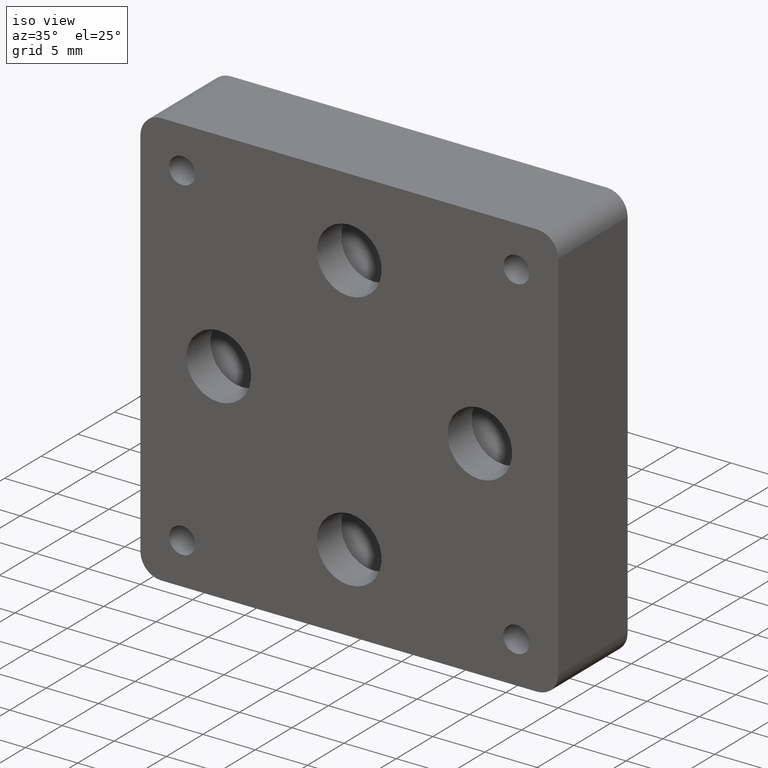
[diagram: clean part render]
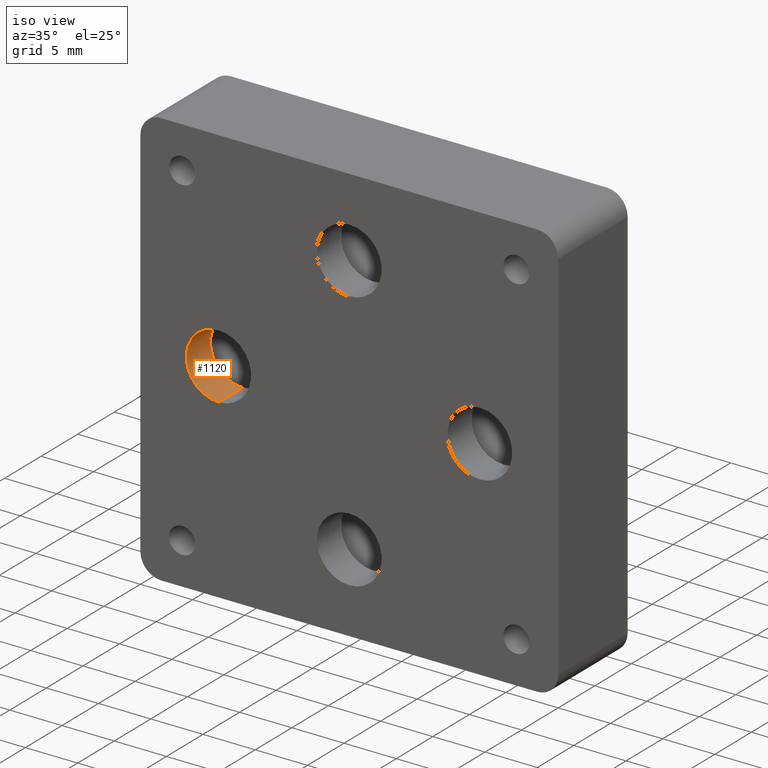
[diagram: same view with one face highlighted and labeled with its STEP entity id]
A machine part, iso view. The second image highlights one B-rep face of the part: STEP entity #1120.
In plain terms, the highlighted cylindrical surface (partial cylindrical patch) has radius 3.1 mm, axis along (0, -1, 0).
Its self-contained STEP definition (entity closure, byte-faithful):
#59 = CARTESIAN_POINT ( 'NONE',  ( -12.50000000000000000, 3.299999999999999822, -3.100000000000000089 ) ) ;
#62 = CIRCLE ( 'NONE', #785, 3.100000000000000089 ) ;
#163 = VERTEX_POINT ( 'NONE', #942 ) ;
#169 = DIRECTION ( 'NONE',  ( 0.000000000000000000, -1.000000000000000000, 0.000000000000000000 ) ) ;
#172 = ORIENTED_EDGE ( 'NONE', *, *, #1161, .T. ) ;
#194 = VECTOR ( 'NONE', #616, 1000.000000000000000 ) ;
#267 = CIRCLE ( 'NONE', #998, 3.100000000000000089 ) ;
#283 = ORIENTED_EDGE ( 'NONE', *, *, #693, .F. ) ;
#313 = CYLINDRICAL_SURFACE ( 'NONE', #1076, 3.100000000000000089 ) ;
#314 = EDGE_LOOP ( 'NONE', ( #1058, #172, #283, #902 ) ) ;
#317 = LINE ( 'NONE', #1199, #194 ) ;
#366 = LINE ( 'NONE', #760, #1012 ) ;
#370 = CARTESIAN_POINT ( 'NONE',  ( -12.50000000000000000, 3.299999999999999822, 0.000000000000000000 ) ) ;
#393 = CARTESIAN_POINT ( 'NONE',  ( -12.50000000000000000, 9.500000000000000000, 0.000000000000000000 ) ) ;
#451 = CARTESIAN_POINT ( 'NONE',  ( -12.50000000000000000, 0.000000000000000000, 3.100000000000000089 ) ) ;
#592 = DIRECTION ( 'NONE',  ( 0.000000000000000000, 1.000000000000000000, 0.000000000000000000 ) ) ;
#610 = EDGE_CURVE ( 'NONE', #1003, #774, #267, .T. ) ;
#616 = DIRECTION ( 'NONE',  ( 0.000000000000000000, -1.000000000000000000, 0.000000000000000000 ) ) ;
#693 = EDGE_CURVE ( 'NONE', #163, #1068, #62, .T. ) ;
#760 = CARTESIAN_POINT ( 'NONE',  ( -12.50000000000000000, 9.500000000000000000, -3.100000000000000089 ) ) ;
#774 = VERTEX_POINT ( 'NONE', #1103 ) ;
#777 = DIRECTION ( 'NONE',  ( 0.000000000000000000, 1.000000000000000000, 0.000000000000000000 ) ) ;
#782 = CARTESIAN_POINT ( 'NONE',  ( -12.50000000000000000, 0.000000000000000000, 0.000000000000000000 ) ) ;
#785 = AXIS2_PLACEMENT_3D ( 'NONE', #782, #777, #995 ) ;
#810 = DIRECTION ( 'NONE',  ( 0.000000000000000000, -1.000000000000000000, 0.000000000000000000 ) ) ;
#902 = ORIENTED_EDGE ( 'NONE', *, *, #1028, .F. ) ;
#923 = DIRECTION ( 'NONE',  ( 0.000000000000000000, 0.000000000000000000, -1.000000000000000000 ) ) ;
#942 = CARTESIAN_POINT ( 'NONE',  ( -12.50000000000000000, 0.000000000000000000, -3.100000000000000089 ) ) ;
#995 = DIRECTION ( 'NONE',  ( 0.000000000000000000, 0.000000000000000000, 1.000000000000000000 ) ) ;
#998 = AXIS2_PLACEMENT_3D ( 'NONE', #370, #592, #1174 ) ;
#1003 = VERTEX_POINT ( 'NONE', #59 ) ;
#1012 = VECTOR ( 'NONE', #169, 1000.000000000000000 ) ;
#1028 = EDGE_CURVE ( 'NONE', #1003, #163, #366, .T. ) ;
#1058 = ORIENTED_EDGE ( 'NONE', *, *, #610, .T. ) ;
#1068 = VERTEX_POINT ( 'NONE', #451 ) ;
#1076 = AXIS2_PLACEMENT_3D ( 'NONE', #393, #810, #923 ) ;
#1103 = CARTESIAN_POINT ( 'NONE',  ( -12.50000000000000000, 3.299999999999999822, 3.100000000000000089 ) ) ;
#1104 = FACE_OUTER_BOUND ( 'NONE', #314, .T. ) ;
#1120 = ADVANCED_FACE ( 'NONE', ( #1104 ), #313, .F. ) ;
#1161 = EDGE_CURVE ( 'NONE', #774, #1068, #317, .T. ) ;
#1174 = DIRECTION ( 'NONE',  ( 0.000000000000000000, 0.000000000000000000, 1.000000000000000000 ) ) ;
#1199 = CARTESIAN_POINT ( 'NONE',  ( -12.50000000000000000, 9.500000000000000000, 3.100000000000000089 ) ) ;